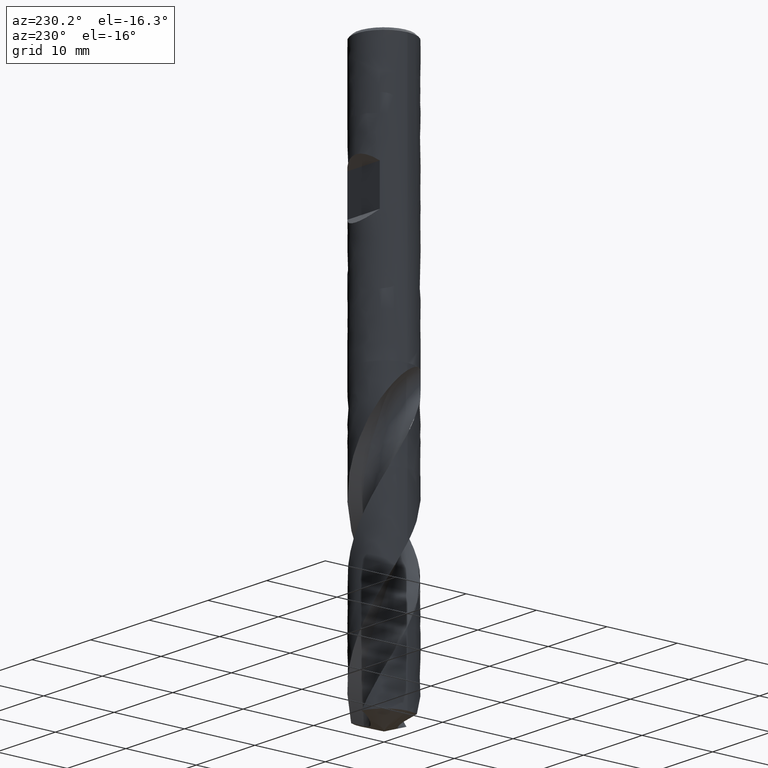
[diagram: clean part render]
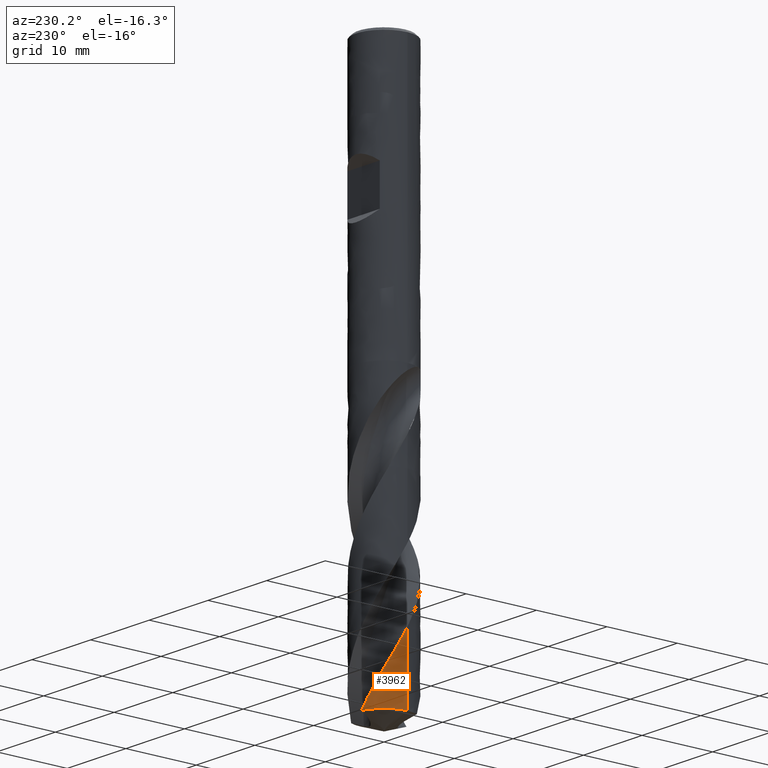
[diagram: same view with one face highlighted and labeled with its STEP entity id]
A machine part, auxiliary view. The second image highlights one B-rep face of the part: STEP entity #3962.
In plain terms, the highlighted face is a freeform B-spline surface patch.
Its self-contained STEP definition (entity closure, byte-faithful):
#3398 = VERTEX_POINT('', #3399);
#3399 = CARTESIAN_POINT('', (-4., 4.40939399021479E-15, -68.010868656739));
#3493 = EDGE_CURVE('', #3398, #3494, #3496, .T.);
#3494 = VERTEX_POINT('', #3495);
#3495 = CARTESIAN_POINT('', (-4., 4.99313721998571E-15, -77.5441190629352));
#3496 = LINE('', #3497, #3498);
#3497 = CARTESIAN_POINT('', (-4., 4.40939399021479E-15, -68.010868656739));
#3498 = VECTOR('', #3499, 9.5332504061962);
#3499 = DIRECTION('', (0., 5.83743229770919E-16, -9.5332504061962));
#3530 = VERTEX_POINT('', #3531);
#3531 = CARTESIAN_POINT('', (-0.860172964470578, 3.9064181126953, -77.5441190629352));
#3652 = EDGE_CURVE('', #3653, #3530, #3655, .T.);
#3653 = VERTEX_POINT('', #3654);
#3654 = CARTESIAN_POINT('', (-1.6147242511488, 3.6595991027368, -76.1408710495163));
#3655 = B_SPLINE_CURVE_WITH_KNOTS('', 3, (#3656, #3657, #3658, #3659, #3660, #3661, #3662, #3663, #3664, #3665), .UNSPECIFIED., .F., .U., (4, 3, 3, 4), (0., 0.66435257678642, 1.32856711068085, 1.61280802403969), .UNSPECIFIED.);
#3656 = CARTESIAN_POINT('', (-1.61472425114876, 3.65959910273682, -76.1408710495164));
#3657 = CARTESIAN_POINT('', (-1.51480762968542, 3.70368529557938, -76.333519847271));
#3658 = CARTESIAN_POINT('', (-1.4130747586517, 3.74368017025851, -76.5262147323249));
#3659 = CARTESIAN_POINT('', (-1.30990978180024, 3.77943598484534, -76.7188776301407));
#3660 = CARTESIAN_POINT('', (-1.20676624114433, 3.81518436988915, -76.9115004953826));
#3661 = CARTESIAN_POINT('', (-1.10214775706038, 3.84671051140094, -77.1041689014973));
#3662 = CARTESIAN_POINT('', (-0.996448892020276, 3.87389850223146, -77.2968050048376));
#3663 = CARTESIAN_POINT('', (-0.951216605753011, 3.88553320600818, -77.3792408130971));
#3664 = CARTESIAN_POINT('', (-0.90578098414034, 3.89637546381564, -77.4616809511083));
#3665 = CARTESIAN_POINT('', (-0.860172964470208, 3.90641811269539, -77.5441190629352));
#3934 = EDGE_CURVE('', #3494, #3530, #3935, .T.);
#3935 = CIRCLE('', #3936, 4.);
#3936 = AXIS2_PLACEMENT_3D('', #3937, #3938, #3939);
#3937 = CARTESIAN_POINT('', (2.90743877881332E-31, 4.74820786015624E-15, -77.5441190629352));
#3938 = DIRECTION('', (3.74939945665464E-33, 6.12323399573677E-17, -1.));
#3939 = DIRECTION('', (-1., 6.12323399573677E-17, 0.));
#3962 = ADVANCED_FACE('', (#3963), #4014, .T.);
#3963 = FACE_OUTER_BOUND('', #3964, .T.);
#3964 = EDGE_LOOP('', (#3965, #3966, #3967, #3968));
#3965 = ORIENTED_EDGE('', *, *, #3652, .T.);
#3966 = ORIENTED_EDGE('', *, *, #3934, .F.);
#3967 = ORIENTED_EDGE('', *, *, #3493, .F.);
#3968 = ORIENTED_EDGE('', *, *, #3969, .F.);
#3969 = EDGE_CURVE('', #3653, #3398, #3970, .T.);
#3970 = B_SPLINE_CURVE_WITH_KNOTS('', 3, (#3971, #3972, #3973, #3974, #3975, #3976, #3977, #3978, #3979, #3980, #3981, #3982, #3983, #3984, #3985, #3986, #3987, #3988, #3989, #3990, #3991, #3992, #3993, #3994, #3995, #3996, #3997, #3998, #3999, #4000, #4001, #4002, #4003, #4004, #4005, #4006, #4007, #4008, #4009, #4010, #4011, #4012, #4013), .UNSPECIFIED., .F., .U., (4, 3, 3, 3, 3, 3, 3, 3, 3, 3, 3, 3, 3, 3, 4), (0., 0.665587519899427, 1.33103401372958, 1.99634160521524, 2.66151177718023, 3.32654533206764, 3.99144247356651, 4.65620332090211, 5.32082757985051, 5.98531436124455, 6.64966210278922, 7.31386872792615, 7.97793199580795, 8.64184907883788, 9.35088402803549), .UNSPECIFIED.);
#3971 = CARTESIAN_POINT('', (-1.6147242511488, 3.6595991027368, -76.1408710495163));
#3972 = CARTESIAN_POINT('', (-1.71482660432729, 3.61543095952311, -75.9478641432598));
#3973 = CARTESIAN_POINT('', (-1.81314947318315, 3.56713711756376, -75.7548262385111));
#3974 = CARTESIAN_POINT('', (-1.9093214904525, 3.5148956522344, -75.5618372641003));
#3975 = CARTESIAN_POINT('', (-2.00547313059462, 3.46266525593547, -75.3688891805951));
#3976 = CARTESIAN_POINT('', (-2.09951243702892, 3.40646847833604, -75.1759099052151));
#3977 = CARTESIAN_POINT('', (-2.19108394685323, 3.34651328069113, -74.9829794825448));
#3978 = CARTESIAN_POINT('', (-2.28263634244743, 3.28657059782779, -74.7900893313138));
#3979 = CARTESIAN_POINT('', (-2.37175871100932, 3.22284693391617, -74.5971685131961));
#3980 = CARTESIAN_POINT('', (-2.4581120623618, 3.15557999246913, -74.4042959280306));
#3981 = CARTESIAN_POINT('', (-2.5444475773987, 3.08832694503287, -74.2114631807666));
#3982 = CARTESIAN_POINT('', (-2.62805150026212, 3.01750375793955, -74.0186002701821));
#3983 = CARTESIAN_POINT('', (-2.70860413521009, 2.94337623125601, -73.8257852169465));
#3984 = CARTESIAN_POINT('', (-2.7891402257217, 2.86926392937732, -73.6330097653499));
#3985 = CARTESIAN_POINT('', (-2.86666034145511, 2.79181734999714, -73.4402038478768));
#3986 = CARTESIAN_POINT('', (-2.94086860288585, 2.7113265868501, -73.2474463813902));
#3987 = CARTESIAN_POINT('', (-3.01506164252767, 2.63085233417486, -73.0547284538095));
#3988 = CARTESIAN_POINT('', (-3.08597400975593, 2.54730288159967, -72.8619792829058));
#3989 = CARTESIAN_POINT('', (-3.15333605181464, 2.4609899927318, -72.6692791205009));
#3990 = CARTESIAN_POINT('', (-3.2206842856426, 2.37469479674037, -72.4766184588032));
#3991 = CARTESIAN_POINT('', (-3.28451016861597, 2.28560328064862, -72.2839265986479));
#3992 = CARTESIAN_POINT('', (-3.34457013900108, 2.19404890221306, -72.0912834784403));
#3993 = CARTESIAN_POINT('', (-3.40461776886626, 2.10251333545231, -71.8986799406077));
#3994 = CARTESIAN_POINT('', (-3.46092550108549, 2.00847850310083, -71.7060457754509));
#3995 = CARTESIAN_POINT('', (-3.51327679744785, 1.91229865463389, -71.5134597449649));
#3996 = CARTESIAN_POINT('', (-3.56561726494249, 1.81613870097242, -71.3209135509069));
#3997 = CARTESIAN_POINT('', (-3.61402511409637, 1.71779380294212, -71.1283370644802));
#3998 = CARTESIAN_POINT('', (-3.65831310690737, 1.61763568575554, -70.9358085644436));
#3999 = CARTESIAN_POINT('', (-3.70259183272312, 1.5174985260506, -70.7433203498339));
#4000 = CARTESIAN_POINT('', (-3.74277104566712, 1.415506921627, -70.5508013421634));
#4001 = CARTESIAN_POINT('', (-3.77869530642301, 1.31204488536666, -70.3583310233626));
#4002 = CARTESIAN_POINT('', (-3.81461193638209, 1.20860482583624, -70.1659015878497));
#4003 = CARTESIAN_POINT('', (-3.8462897937131, 1.1036536832034, -69.9734407451315));
#4004 = CARTESIAN_POINT('', (-3.87360596131883, 0.997585513344816, -69.7810289258342));
#4005 = CARTESIAN_POINT('', (-3.9009162332128, 0.891540236425128, -69.5886586352259));
#4006 = CARTESIAN_POINT('', (-3.92387754655194, 0.78433613062589, -69.3962571898484));
#4007 = CARTESIAN_POINT('', (-3.94239948700768, 0.676377324310924, -69.2039043518723));
#4008 = CARTESIAN_POINT('', (-3.96091735010024, 0.568442283716594, -69.0115938578603));
#4009 = CARTESIAN_POINT('', (-3.97500542158134, 0.45970806522858, -68.8192527689305));
#4010 = CARTESIAN_POINT('', (-3.98460648224931, 0.350586910220051, -68.6269597542045));
#4011 = CARTESIAN_POINT('', (-3.99486000296292, 0.234050200176746, -68.4215990677388));
#4012 = CARTESIAN_POINT('', (-4., 0.117022270417123, -68.2162092013151));
#4013 = CARTESIAN_POINT('', (-4., 4.35908192721378E-15, -68.010868656739));
#4014 = (
   BOUNDED_SURFACE ()
   B_SPLINE_SURFACE (2, 1, ((#4015, #4016), (#4017, #4018), (#4019, #4020)), .UNSPECIFIED., .F., .F., .U.)
   B_SPLINE_SURFACE_WITH_KNOTS ((3, 3), (2, 2), (0., 5.35815073483248), (0.758921158642481, 1.), .UNSPECIFIED.)
   GEOMETRIC_REPRESENTATION_ITEM ()
   RATIONAL_B_SPLINE_SURFACE (((1., 1.), (0.750227641094798, 0.750227641094798), (0.92645511602531, 0.92645511602531)))
   REPRESENTATION_ITEM ('')
   SURFACE ()
);
#4015 = CARTESIAN_POINT('', (-4., 4.40939399021479E-15, -68.010868656739));
#4016 = CARTESIAN_POINT('', (-4., 4.99313721998571E-15, -77.5441190629352));
#4017 = CARTESIAN_POINT('', (-4., 3.21504451899375, -68.010868656739));
#4018 = CARTESIAN_POINT('', (-4., 3.21504451899375, -77.5441190629352));
#4019 = CARTESIAN_POINT('', (-0.860172964470208, 3.90641811269538, -68.010868656739));
#4020 = CARTESIAN_POINT('', (-0.860172964470208, 3.90641811269539, -77.5441190629352));